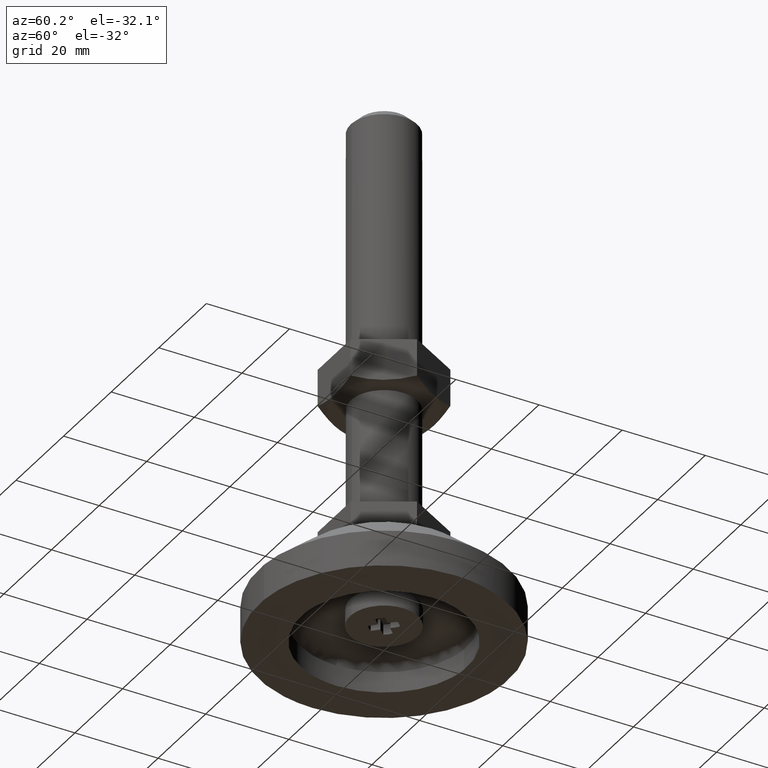
[diagram: clean part render]
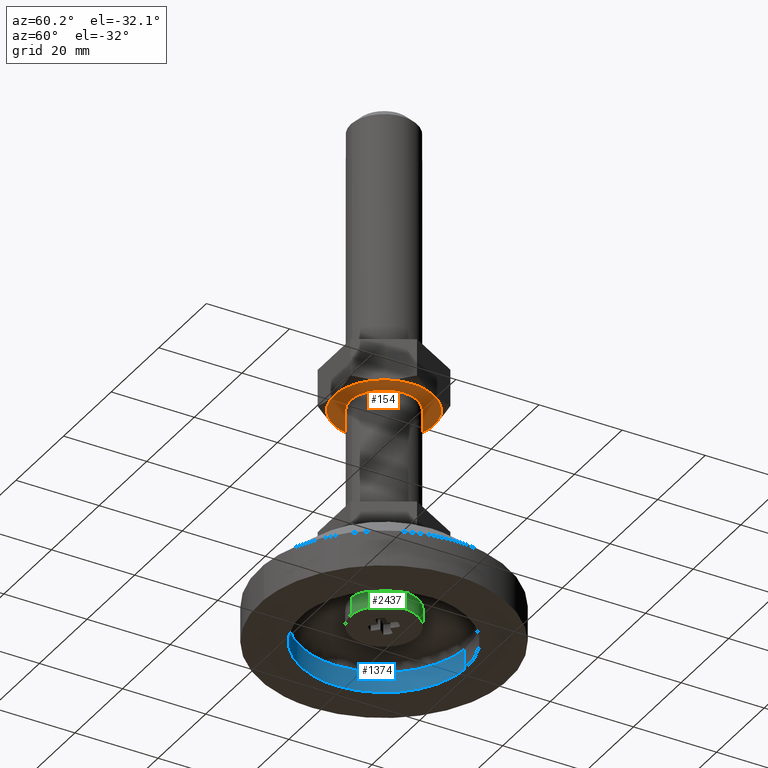
[diagram: same view with three faces highlighted in distinct colors, each labeled with its STEP entity id]
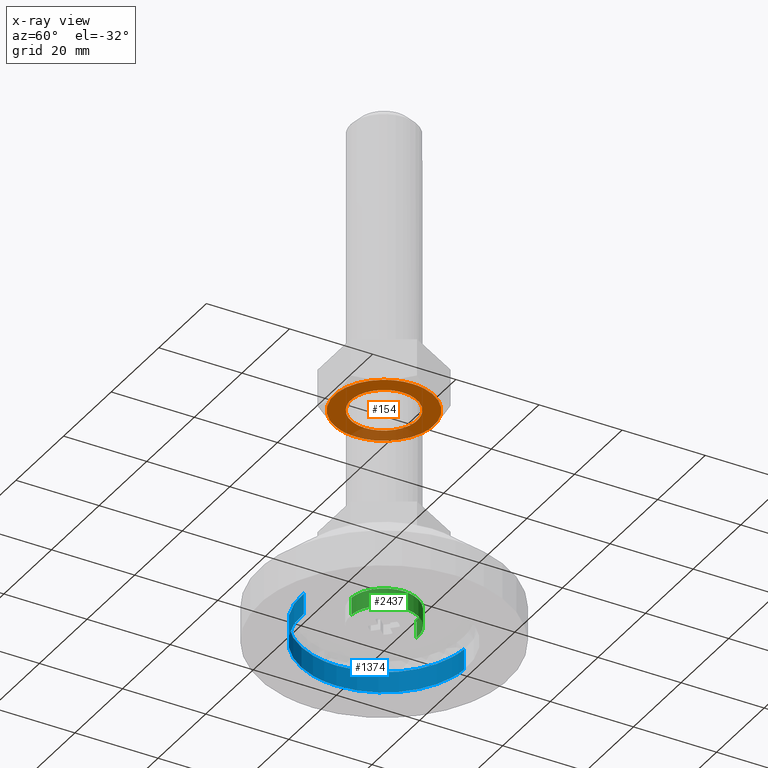
[diagram: x-ray of the same camera — body ghosted, the three highlighted faces saturated]
A machine part, auxiliary view with three faces highlighted in distinct colors.
The next image is the same camera in x-ray (body ghosted, the three faces saturated) — at least one of them is partly hidden behind the body in this view.
Their STEP definitions:

[orange] entity #154 — the highlighted face is a freeform B-spline surface patch.
#5=CARTESIAN_POINT('',(-13.191753614188199,13.191556369858921,57.0));
#6=CARTESIAN_POINT('',(13.191754257574701,13.191556369858921,57.0));
#7=CARTESIAN_POINT('',(-13.191753614188199,-13.191556155396750,57.0));
#8=CARTESIAN_POINT('',(13.191754257574701,-13.191556155396750,57.0));
#9=B_SPLINE_SURFACE_WITH_KNOTS('',1,1,((#5,#7),(#6,#8)),.UNSPECIFIED.,.F.,.F.,.U.,(2,2),(2,2),(0.0,26.383507871762902),(0.0,26.383112525255669),.UNSPECIFIED.);
#10=CARTESIAN_POINT('',(-11.993593654586800,0.0,57.0));
#11=VERTEX_POINT('',#10);
#12=CARTESIAN_POINT('',(-10.331591385268490,6.091346993848651,57.000000000006743));
#13=VERTEX_POINT('',#12);
#14=CARTESIAN_POINT('',(-11.993593654586800,0.0,57.0));
#15=CARTESIAN_POINT('',(-11.993593654591802,3.272409188229104,57.000000000003361));
#16=CARTESIAN_POINT('',(-10.331591385268485,6.091346993848651,57.000000000006743));
#24=(BOUNDED_CURVE()B_SPLINE_CURVE(2,(#14,#15,#16),.UNSPECIFIED.,.F.,.U.)B_SPLINE_CURVE_WITH_KNOTS((3,3),(0.0,0.086670559871781),.UNSPECIFIED.)CURVE()GEOMETRIC_REPRESENTATION_ITEM()RATIONAL_B_SPLINE_CURVE((1.0,0.898459122971160,0.867323083238010))REPRESENTATION_ITEM(''));
#25=EDGE_CURVE('',#11,#13,#24,.T.);
#26=ORIENTED_EDGE('',*,*,#25,.T.);
#27=CARTESIAN_POINT('',(11.993593654586800,0.0,57.0));
#28=VERTEX_POINT('',#27);
#29=CARTESIAN_POINT('',(-10.331591385268490,6.091346993848651,57.000000000006743));
#30=CARTESIAN_POINT('',(-9.979845454208421,6.687982943098110,57.000000000006722));
#31=CARTESIAN_POINT('',(-9.054059837374659,7.986728776658461,57.000000000006423));
#32=CARTESIAN_POINT('',(-7.378450658283156,9.556261171456347,57.000000000006459));
#33=CARTESIAN_POINT('',(-5.535116597722160,10.696433170791730,57.000000000005429));
#34=CARTESIAN_POINT('',(-3.726286727770865,11.452781829226501,57.000000000005471));
#35=CARTESIAN_POINT('',(-1.858466498034683,11.906102908234750,57.000000000005343));
#36=CARTESIAN_POINT('',(0.302719327965480,12.057530286528371,57.000000000003872));
#37=CARTESIAN_POINT('',(2.499961150376451,11.807098229642980,57.000000000003922));
#38=CARTESIAN_POINT('',(4.761936546735051,11.089711655482679,57.000000000002217));
#39=CARTESIAN_POINT('',(6.737866405224072,10.008312822223170,57.000000000004462));
#40=CARTESIAN_POINT('',(8.252633220668283,8.759819706283142,56.999999999996973));
#41=CARTESIAN_POINT('',(9.461760549519667,7.432513947875305,57.000000000003929));
#42=CARTESIAN_POINT('',(10.386713057814740,6.084185448230888,56.999999999999588));
#43=CARTESIAN_POINT('',(11.120091581039681,4.579284444393815,57.000000000001073));
#44=CARTESIAN_POINT('',(11.787145940657300,2.607307915050746,56.999999999999972));
#45=CARTESIAN_POINT('',(11.993912041119570,1.059311167418565,57.000000000000220));
#46=CARTESIAN_POINT('',(11.993593654586800,0.0,57.0));
#47=B_SPLINE_CURVE_WITH_KNOTS('',3,(#29,#30,#31,#32,#33,#34,#35,#36,#37,#38,#39,#40,#41,#42,#43,#44,#45,#46),.UNSPECIFIED.,.F.,.U.,(4,1,1,1,1,1,1,1,1,1,1,1,1,1,1,4),(0.000000140499353,2.077839287122430,4.766821207595768,6.844652353720530,8.555833767684103,10.633677886501420,12.589230697921630,15.033711899244780,17.233799480518741,19.678364119076520,21.756207312452879,23.100706103107530,25.056326565504801,26.645255872877950,28.111998141105211,31.289823089043988),.UNSPECIFIED.);
#48=EDGE_CURVE('',#13,#28,#47,.T.);
#49=ORIENTED_EDGE('',*,*,#48,.T.);
#50=CARTESIAN_POINT('',(10.331591385268490,-6.091346993848648,57.000000000006729));
#51=VERTEX_POINT('',#50);
#52=CARTESIAN_POINT('',(11.993593654586800,0.0,57.0));
#53=CARTESIAN_POINT('',(11.993593654591802,-3.272409188229100,57.000000000003368));
#54=CARTESIAN_POINT('',(10.331591385268487,-6.091346993848648,57.000000000006729));
#62=(BOUNDED_CURVE()B_SPLINE_CURVE(2,(#52,#53,#54),.UNSPECIFIED.,.F.,.U.)B_SPLINE_CURVE_WITH_KNOTS((3,3),(0.500000000000000,0.586670559871781),.UNSPECIFIED.)CURVE()GEOMETRIC_REPRESENTATION_ITEM()RATIONAL_B_SPLINE_CURVE((1.0,0.898459122971160,0.867323083238010))REPRESENTATION_ITEM(''));
#63=EDGE_CURVE('',#28,#51,#62,.T.);
#64=ORIENTED_EDGE('',*,*,#63,.T.);
#65=CARTESIAN_POINT('',(10.331591385268490,-6.091346993848648,57.000000000006729));
#66=CARTESIAN_POINT('',(9.979870521409815,-6.688009703988660,57.000000000006722));
#67=CARTESIAN_POINT('',(9.220130270138427,-7.753520708540841,57.000000000006473));
#68=CARTESIAN_POINT('',(7.808627842076318,-9.173545991364888,57.000000000006381));
#69=CARTESIAN_POINT('',(6.051383438977912,-10.442375330911970,57.000000000005720));
#70=CARTESIAN_POINT('',(4.004512093125001,-11.385387325581419,57.000000000005578));
#71=CARTESIAN_POINT('',(1.977647699607989,-11.877143707203921,57.000000000004640));
#72=CARTESIAN_POINT('',(0.187633706476257,-12.029996616560840,57.000000000004398));
#73=CARTESIAN_POINT('',(-1.851875336793120,-11.923386940474259,57.000000000003588));
#74=CARTESIAN_POINT('',(-4.003022687229389,-11.394857246454050,57.000000000003368));
#75=CARTESIAN_POINT('',(-6.218117873560587,-10.339241941105341,57.000000000002373));
#76=CARTESIAN_POINT('',(-7.868786353324302,-9.127503211384369,57.000000000001407));
#77=CARTESIAN_POINT('',(-9.317531873304370,-7.631615608174545,57.000000000000611));
#78=CARTESIAN_POINT('',(-10.350962818105399,-6.157616955142995,57.000000000001293));
#79=CARTESIAN_POINT('',(-11.120105627076500,-4.579283181293789,57.000000000000533));
#80=CARTESIAN_POINT('',(-11.787075479163230,-2.607298346584250,57.000000000000227));
#81=CARTESIAN_POINT('',(-11.993985327983861,-1.059321230526168,57.000000000000107));
#82=CARTESIAN_POINT('',(-11.993593654586800,0.0,57.0));
#83=B_SPLINE_CURVE_WITH_KNOTS('',3,(#65,#66,#67,#68,#69,#70,#71,#72,#73,#74,#75,#76,#77,#78,#79,#80,#81,#82),.UNSPECIFIED.,.F.,.U.,(4,1,1,1,1,1,1,1,1,1,1,1,1,1,1,4),(0.000000140500887,2.077839287123400,3.911239662699373,5.989102336119654,8.555833767684330,10.633677886501481,12.222659096330030,13.933665276616990,16.744888195965089,18.822753286159969,21.267302756441691,22.856243551605051,25.056326565504801,26.645255872877950,28.111998141105222,31.289823089043999),.UNSPECIFIED.);
#84=EDGE_CURVE('',#51,#11,#83,.T.);
#85=ORIENTED_EDGE('',*,*,#84,.T.);
#86=EDGE_LOOP('',(#26,#49,#64,#85));
#87=FACE_OUTER_BOUND('',#86,.T.);
#88=CARTESIAN_POINT('',(8.0,0.0,57.0));
#89=VERTEX_POINT('',#88);
#90=CARTESIAN_POINT('',(0.627672766004983,7.975338669850681,57.0));
#91=VERTEX_POINT('',#90);
#92=CARTESIAN_POINT('',(8.0,0.0,57.0));
#93=CARTESIAN_POINT('',(8.0,7.395123933096166,57.000000000000007));
#94=CARTESIAN_POINT('',(0.627672766004984,7.975338669850682,57.0));
#102=(BOUNDED_CURVE()B_SPLINE_CURVE(2,(#92,#93,#94),.UNSPECIFIED.,.F.,.U.)B_SPLINE_CURVE_WITH_KNOTS((3,3),(0.500000000000000,0.736331300628850),.UNSPECIFIED.)CURVE()GEOMETRIC_REPRESENTATION_ITEM()RATIONAL_B_SPLINE_CURVE((1.0,0.723120658609786,0.969723356163641))REPRESENTATION_ITEM(''));
#103=EDGE_CURVE('',#89,#91,#102,.T.);
#104=ORIENTED_EDGE('',*,*,#103,.T.);
#105=CARTESIAN_POINT('',(-8.0,0.0,57.0));
#106=VERTEX_POINT('',#105);
#107=CARTESIAN_POINT('',(0.627672766004984,7.975338669850682,57.0));
#108=CARTESIAN_POINT('',(0.314320856152892,8.0,57.0));
#109=CARTESIAN_POINT('',(0.0,8.0,57.0));
#110=CARTESIAN_POINT('',(-8.0,8.0,57.000000000000014));
#111=CARTESIAN_POINT('',(-8.0,0.0,57.0));
#119=(BOUNDED_CURVE()B_SPLINE_CURVE(2,(#107,#108,#109,#110,#111),.UNSPECIFIED.,.F.,.U.)B_SPLINE_CURVE_WITH_KNOTS((3,2,3),(0.736331300628850,0.750000000000000,1.0),.UNSPECIFIED.)CURVE()GEOMETRIC_REPRESENTATION_ITEM()RATIONAL_B_SPLINE_CURVE((0.969723356163641,0.983986122576762,1.0,0.707106781186548,1.0))REPRESENTATION_ITEM(''));
#120=EDGE_CURVE('',#91,#106,#119,.T.);
#121=ORIENTED_EDGE('',*,*,#120,.T.);
#122=CARTESIAN_POINT('',(-0.627672766004982,-7.975338669850681,57.0));
#123=VERTEX_POINT('',#122);
#124=CARTESIAN_POINT('',(-8.0,0.0,57.0));
#125=CARTESIAN_POINT('',(-8.0,-7.395123933096168,57.000000000000007));
#126=CARTESIAN_POINT('',(-0.627672766004983,-7.975338669850682,57.0));
#134=(BOUNDED_CURVE()B_SPLINE_CURVE(2,(#124,#125,#126),.UNSPECIFIED.,.F.,.U.)B_SPLINE_CURVE_WITH_KNOTS((3,3),(0.0,0.236331300628850),.UNSPECIFIED.)CURVE()GEOMETRIC_REPRESENTATION_ITEM()RATIONAL_B_SPLINE_CURVE((1.0,0.723120658609786,0.969723356163641))REPRESENTATION_ITEM(''));
#135=EDGE_CURVE('',#106,#123,#134,.T.);
#136=ORIENTED_EDGE('',*,*,#135,.T.);
#137=CARTESIAN_POINT('',(-0.627672766004983,-7.975338669850682,57.0));
#138=CARTESIAN_POINT('',(-0.314320856152891,-8.0,57.0));
#139=CARTESIAN_POINT('',(0.0,-8.0,57.0));
#140=CARTESIAN_POINT('',(8.0,-8.0,57.000000000000014));
#141=CARTESIAN_POINT('',(8.0,0.0,57.0));
#149=(BOUNDED_CURVE()B_SPLINE_CURVE(2,(#137,#138,#139,#140,#141),.UNSPECIFIED.,.F.,.U.)B_SPLINE_CURVE_WITH_KNOTS((3,2,3),(0.236331300628850,0.250000000000000,0.500000000000000),.UNSPECIFIED.)CURVE()GEOMETRIC_REPRESENTATION_ITEM()RATIONAL_B_SPLINE_CURVE((0.969723356163641,0.983986122576762,1.0,0.707106781186548,1.0))REPRESENTATION_ITEM(''));
#150=EDGE_CURVE('',#123,#89,#149,.T.);
#151=ORIENTED_EDGE('',*,*,#150,.T.);
#152=EDGE_LOOP('',(#104,#121,#136,#151));
#153=FACE_BOUND('',#152,.T.);
#154=ADVANCED_FACE('',(#87,#153),#9,.T.);

[blue] entity #1374 — the highlighted face is a freeform B-spline surface patch.
#1002=CARTESIAN_POINT('',(-20.0,-1.770216E-015,5.000000000053928));
#1003=VERTEX_POINT('',#1002);
#1017=CARTESIAN_POINT('',(-1.220948073408924,19.962697357860261,5.000000000054692));
#1018=VERTEX_POINT('',#1017);
#1019=CARTESIAN_POINT('',(-20.0,-1.770216E-015,5.000000000053928));
#1020=CARTESIAN_POINT('',(-19.999999999999609,18.814142788351660,5.000000000054309));
#1021=CARTESIAN_POINT('',(-1.220948073408924,19.962697357860261,5.000000000054692));
#1029=(BOUNDED_CURVE()B_SPLINE_CURVE(2,(#1019,#1020,#1021),.UNSPECIFIED.,.F.,.U.)B_SPLINE_CURVE_WITH_KNOTS((3,3),(0.0,0.239333158597998),.UNSPECIFIED.)CURVE()GEOMETRIC_REPRESENTATION_ITEM()RATIONAL_B_SPLINE_CURVE((1.0,0.719603763237767,0.976072462501913))REPRESENTATION_ITEM(''));
#1030=EDGE_CURVE('',#1003,#1018,#1029,.T.);
#1098=CARTESIAN_POINT('',(1.220948073408923,-19.962697357860261,5.000000000054691));
#1099=VERTEX_POINT('',#1098);
#1113=CARTESIAN_POINT('',(1.220948073408923,-19.962697357860261,5.000000000054691));
#1114=CARTESIAN_POINT('',(0.611043875479347,-19.999999999987260,5.000000000054679));
#1115=CARTESIAN_POINT('',(-7.690357E-013,-19.999999999987459,5.000000000054668));
#1116=CARTESIAN_POINT('',(-20.000000000000366,-19.999999999993918,5.000000000054286));
#1117=CARTESIAN_POINT('',(-20.0,-1.770216E-015,5.000000000053928));
#1125=(BOUNDED_CURVE()B_SPLINE_CURVE(2,(#1113,#1114,#1115,#1116,#1117),.UNSPECIFIED.,.F.,.U.)B_SPLINE_CURVE_WITH_KNOTS((3,2,3),(0.739333158597998,0.750000000000000,1.0),.UNSPECIFIED.)CURVE()GEOMETRIC_REPRESENTATION_ITEM()RATIONAL_B_SPLINE_CURVE((0.976072462501913,0.987503017948780,1.0,0.707106781186548,1.0))REPRESENTATION_ITEM(''));
#1126=EDGE_CURVE('',#1099,#1003,#1125,.T.);
#1272=CARTESIAN_POINT('',(-1.220948347412878,19.962697341102078,-1.804112E-016));
#1273=VERTEX_POINT('',#1272);
#1274=CARTESIAN_POINT('',(-1.220948073408924,19.962697357860261,5.000000000054692));
#1275=CARTESIAN_POINT('',(-1.220948347412878,19.962697341102078,-1.804112E-016));
#1276=QUASI_UNIFORM_CURVE('',1,(#1274,#1275),.UNSPECIFIED.,.F.,.U.);
#1277=EDGE_CURVE('',#1018,#1273,#1276,.T.);
#1296=CARTESIAN_POINT('',(1.220948347412882,-19.962697341102078,4.024558E-016));
#1297=VERTEX_POINT('',#1296);
#1311=CARTESIAN_POINT('',(1.220948073408923,-19.962697357860261,5.000000000054691));
#1312=CARTESIAN_POINT('',(1.220948347412882,-19.962697341102078,4.024558E-016));
#1313=QUASI_UNIFORM_CURVE('',1,(#1311,#1312),.UNSPECIFIED.,.F.,.U.);
#1314=EDGE_CURVE('',#1099,#1297,#1313,.T.);
#1320=CARTESIAN_POINT('',(1.220970790697140,-19.962695968437330,5.125000000055278));
#1321=CARTESIAN_POINT('',(-18.741725177740186,-21.183666759134471,5.125000000055277));
#1322=CARTESIAN_POINT('',(-19.962695968437330,-1.220970790697140,5.125000000055278));
#1323=CARTESIAN_POINT('',(-21.183666759134471,18.741725177740186,5.125000000055277));
#1324=CARTESIAN_POINT('',(-1.220970790697140,19.962695968437330,5.125000000055278));
#1325=CARTESIAN_POINT('',(1.220970790697140,-19.962695968437330,-0.128125000001382));
#1326=CARTESIAN_POINT('',(-18.741725177740186,-21.183666759134471,-0.128125000001382));
#1327=CARTESIAN_POINT('',(-19.962695968437330,-1.220970790697140,-0.128125000001382));
#1328=CARTESIAN_POINT('',(-21.183666759134471,18.741725177740186,-0.128125000001382));
#1329=CARTESIAN_POINT('',(-1.220970790697140,19.962695968437330,-0.128125000001382));
#1337=(BOUNDED_SURFACE()B_SPLINE_SURFACE(2,1,((#1320,#1325),(#1321,#1326),(#1322,#1327),(#1323,#1328),(#1324,#1329)),.UNSPECIFIED.,.F.,.F.,.U.)B_SPLINE_SURFACE_WITH_KNOTS((3,2,3),(2,2),(0.0,33.137084989847587,66.274169979695188),(0.0,5.253125000056659),.UNSPECIFIED.)GEOMETRIC_REPRESENTATION_ITEM()RATIONAL_B_SPLINE_SURFACE(((1.0,1.0),(0.707106781186548,0.707106781186548),(1.0,1.0),(0.707106781186548,0.707106781186548),(1.0,1.0)))REPRESENTATION_ITEM('')SURFACE());
#1338=ORIENTED_EDGE('',*,*,#1030,.F.);
#1339=ORIENTED_EDGE('',*,*,#1126,.F.);
#1340=ORIENTED_EDGE('',*,*,#1314,.T.);
#1341=CARTESIAN_POINT('',(-20.0,0.0,0.0));
#1342=VERTEX_POINT('',#1341);
#1343=CARTESIAN_POINT('',(1.220948347412882,-19.962697341102078,4.024558E-016));
#1344=CARTESIAN_POINT('',(0.611044012865462,-19.999999999987569,3.966724E-016));
#1345=CARTESIAN_POINT('',(-7.502379E-013,-19.999999999987761,3.905245E-016));
#1346=CARTESIAN_POINT('',(-20.000000000000366,-19.999999999994074,1.892965E-016));
#1347=CARTESIAN_POINT('',(-20.0,0.0,0.0));
#1355=(BOUNDED_CURVE()B_SPLINE_CURVE(2,(#1343,#1344,#1345,#1346,#1347),.UNSPECIFIED.,.F.,.U.)B_SPLINE_CURVE_WITH_KNOTS((3,2,3),(0.739333156229655,0.750000000000000,1.0),.UNSPECIFIED.)CURVE()GEOMETRIC_REPRESENTATION_ITEM()RATIONAL_B_SPLINE_CURVE((0.976072457426094,0.987503015174094,1.0,0.707106781186548,1.0))REPRESENTATION_ITEM(''));
#1356=EDGE_CURVE('',#1297,#1342,#1355,.T.);
#1357=ORIENTED_EDGE('',*,*,#1356,.T.);
#1358=CARTESIAN_POINT('',(-20.0,0.0,0.0));
#1359=CARTESIAN_POINT('',(-19.999999999999616,18.814142529630164,-9.020562E-017));
#1360=CARTESIAN_POINT('',(-1.220948347412879,19.962697341102086,-1.804112E-016));
#1368=(BOUNDED_CURVE()B_SPLINE_CURVE(2,(#1358,#1359,#1360),.UNSPECIFIED.,.F.,.U.)B_SPLINE_CURVE_WITH_KNOTS((3,3),(0.0,0.239333156229655),.UNSPECIFIED.)CURVE()GEOMETRIC_REPRESENTATION_ITEM()RATIONAL_B_SPLINE_CURVE((1.0,0.719603766012454,0.976072457426094))REPRESENTATION_ITEM(''));
#1369=EDGE_CURVE('',#1342,#1273,#1368,.T.);
#1370=ORIENTED_EDGE('',*,*,#1369,.T.);
#1371=ORIENTED_EDGE('',*,*,#1277,.F.);
#1372=EDGE_LOOP('',(#1338,#1339,#1340,#1357,#1370,#1371));
#1373=FACE_OUTER_BOUND('',#1372,.T.);
#1374=ADVANCED_FACE('',(#1373),#1337,.F.);

[green] entity #2437 — the highlighted face is a freeform B-spline surface patch.
#2284=CARTESIAN_POINT('',(-0.497545597396352,8.134798607126761,3.800000000000000));
#2285=VERTEX_POINT('',#2284);
#2299=CARTESIAN_POINT('',(8.149999999999999,0.0,3.800000000000000));
#2300=VERTEX_POINT('',#2299);
#2301=CARTESIAN_POINT('',(-0.497545597396352,8.134798607126760,3.799999999999999));
#2302=CARTESIAN_POINT('',(-0.249005020977396,8.149999999999999,3.799999999999999));
#2303=CARTESIAN_POINT('',(0.0,8.149999999999999,3.800000000000000));
#2304=CARTESIAN_POINT('',(8.149999999999999,8.149999999999999,3.800000000000000));
#2305=CARTESIAN_POINT('',(8.149999999999999,0.0,3.800000000000000));
#2313=(BOUNDED_CURVE()B_SPLINE_CURVE(2,(#2301,#2302,#2303,#2304,#2305),.UNSPECIFIED.,.F.,.U.)B_SPLINE_CURVE_WITH_KNOTS((3,2,3),(0.239332962237996,0.250000000000000,0.500000000000000),.UNSPECIFIED.)CURVE()GEOMETRIC_REPRESENTATION_ITEM()RATIONAL_B_SPLINE_CURVE((0.976072041664689,0.987502787898728,1.0,0.707106781186548,1.0))REPRESENTATION_ITEM(''));
#2314=EDGE_CURVE('',#2285,#2300,#2313,.T.);
#2316=CARTESIAN_POINT('',(0.497545597396352,-8.134798607126761,3.800000000000000));
#2317=VERTEX_POINT('',#2316);
#2318=CARTESIAN_POINT('',(8.149999999999999,0.0,3.800000000000000));
#2319=CARTESIAN_POINT('',(8.150000000000000,-7.666754445104590,3.800000000000001));
#2320=CARTESIAN_POINT('',(0.497545597396352,-8.134798607126760,3.799999999999999));
#2328=(BOUNDED_CURVE()B_SPLINE_CURVE(2,(#2318,#2319,#2320),.UNSPECIFIED.,.F.,.U.)B_SPLINE_CURVE_WITH_KNOTS((3,3),(0.500000000000000,0.739332962237996),.UNSPECIFIED.)CURVE()GEOMETRIC_REPRESENTATION_ITEM()RATIONAL_B_SPLINE_CURVE((1.0,0.719603993287819,0.976072041664689))REPRESENTATION_ITEM(''));
#2329=EDGE_CURVE('',#2300,#2317,#2328,.T.);
#2371=CARTESIAN_POINT('',(-0.497545597209084,8.134798607138214,8.105000000000000));
#2372=CARTESIAN_POINT('',(7.637253009929130,8.632344204347298,8.105000000000000));
#2373=CARTESIAN_POINT('',(8.134798607138214,0.497545597209084,8.105000000000000));
#2374=CARTESIAN_POINT('',(8.632344204347298,-7.637253009929130,8.105000000000000));
#2375=CARTESIAN_POINT('',(0.497545597209084,-8.134798607138214,8.105000000000000));
#2376=CARTESIAN_POINT('',(-0.497545597209084,8.134798607138214,3.692374999999998));
#2377=CARTESIAN_POINT('',(7.637253009929130,8.632344204347298,3.692374999999998));
#2378=CARTESIAN_POINT('',(8.134798607138214,0.497545597209084,3.692374999999998));
#2379=CARTESIAN_POINT('',(8.632344204347298,-7.637253009929130,3.692374999999998));
#2380=CARTESIAN_POINT('',(0.497545597209084,-8.134798607138214,3.692374999999998));
#2388=(BOUNDED_SURFACE()B_SPLINE_SURFACE(2,1,((#2371,#2376),(#2372,#2377),(#2373,#2378),(#2374,#2379),(#2375,#2380)),.UNSPECIFIED.,.F.,.F.,.U.)B_SPLINE_SURFACE_WITH_KNOTS((3,2,3),(2,2),(0.0,13.503362133362900,27.006724266725790),(0.0,4.412625000000003),.UNSPECIFIED.)GEOMETRIC_REPRESENTATION_ITEM()RATIONAL_B_SPLINE_SURFACE(((1.0,1.0),(0.707106781186548,0.707106781186548),(1.0,1.0),(0.707106781186548,0.707106781186548),(1.0,1.0)))REPRESENTATION_ITEM('')SURFACE());
#2389=ORIENTED_EDGE('',*,*,#2314,.F.);
#2390=CARTESIAN_POINT('',(-0.497545597396352,8.134798607126760,8.0));
#2391=VERTEX_POINT('',#2390);
#2392=CARTESIAN_POINT('',(-0.497545597396352,8.134798607126760,8.0));
#2393=CARTESIAN_POINT('',(-0.497545597396352,8.134798607126761,3.800000000000000));
#2394=QUASI_UNIFORM_CURVE('',1,(#2392,#2393),.UNSPECIFIED.,.F.,.U.);
#2395=EDGE_CURVE('',#2391,#2285,#2394,.T.);
#2396=ORIENTED_EDGE('',*,*,#2395,.F.);
#2397=CARTESIAN_POINT('',(8.149999999999999,0.0,8.0));
#2398=VERTEX_POINT('',#2397);
#2399=CARTESIAN_POINT('',(-0.497545597396353,8.134798607126761,8.0));
#2400=CARTESIAN_POINT('',(-0.249005020977397,8.149999999999999,8.0));
#2401=CARTESIAN_POINT('',(0.0,8.149999999999999,8.0));
#2402=CARTESIAN_POINT('',(8.149999999999999,8.149999999999999,8.0));
#2403=CARTESIAN_POINT('',(8.149999999999999,0.0,8.0));
#2411=(BOUNDED_CURVE()B_SPLINE_CURVE(2,(#2399,#2400,#2401,#2402,#2403),.UNSPECIFIED.,.F.,.U.)B_SPLINE_CURVE_WITH_KNOTS((3,2,3),(0.239332962237996,0.250000000000000,0.500000000000000),.UNSPECIFIED.)CURVE()GEOMETRIC_REPRESENTATION_ITEM()RATIONAL_B_SPLINE_CURVE((0.976072041664689,0.987502787898728,1.0,0.707106781186548,1.0))REPRESENTATION_ITEM(''));
#2412=EDGE_CURVE('',#2391,#2398,#2411,.T.);
#2413=ORIENTED_EDGE('',*,*,#2412,.T.);
#2414=CARTESIAN_POINT('',(0.497545597396352,-8.134798607126761,8.0));
#2415=VERTEX_POINT('',#2414);
#2416=CARTESIAN_POINT('',(8.149999999999999,0.0,8.0));
#2417=CARTESIAN_POINT('',(8.150000000000000,-7.666754445104590,8.0));
#2418=CARTESIAN_POINT('',(0.497545597396352,-8.134798607126760,8.0));
#2426=(BOUNDED_CURVE()B_SPLINE_CURVE(2,(#2416,#2417,#2418),.UNSPECIFIED.,.F.,.U.)B_SPLINE_CURVE_WITH_KNOTS((3,3),(0.500000000000000,0.739332962237996),.UNSPECIFIED.)CURVE()GEOMETRIC_REPRESENTATION_ITEM()RATIONAL_B_SPLINE_CURVE((1.0,0.719603993287819,0.976072041664689))REPRESENTATION_ITEM(''));
#2427=EDGE_CURVE('',#2398,#2415,#2426,.T.);
#2428=ORIENTED_EDGE('',*,*,#2427,.T.);
#2429=CARTESIAN_POINT('',(0.497545597396352,-8.134798607126761,8.0));
#2430=CARTESIAN_POINT('',(0.497545597396352,-8.134798607126761,3.800000000000000));
#2431=QUASI_UNIFORM_CURVE('',1,(#2429,#2430),.UNSPECIFIED.,.F.,.U.);
#2432=EDGE_CURVE('',#2415,#2317,#2431,.T.);
#2433=ORIENTED_EDGE('',*,*,#2432,.T.);
#2434=ORIENTED_EDGE('',*,*,#2329,.F.);
#2435=EDGE_LOOP('',(#2389,#2396,#2413,#2428,#2433,#2434));
#2436=FACE_OUTER_BOUND('',#2435,.T.);
#2437=ADVANCED_FACE('',(#2436),#2388,.T.);